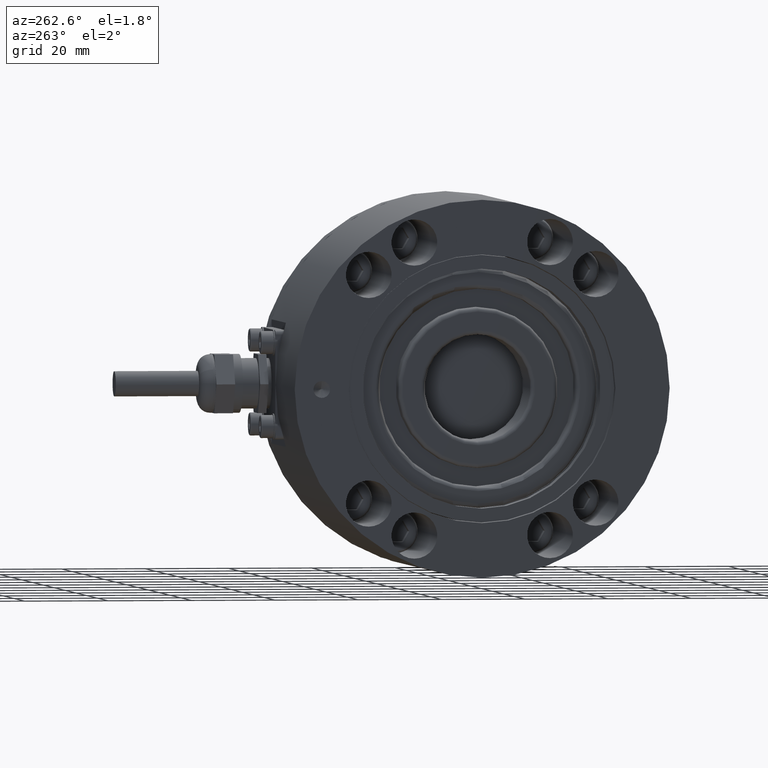
[diagram: clean part render]
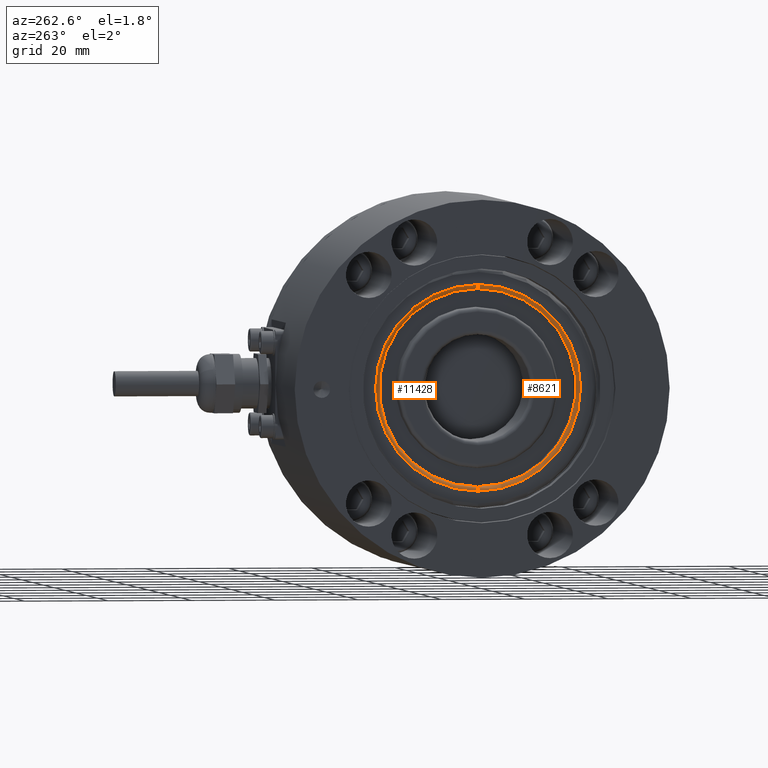
[diagram: same view with one multi-face feature highlighted, each face labeled with its STEP entity id]
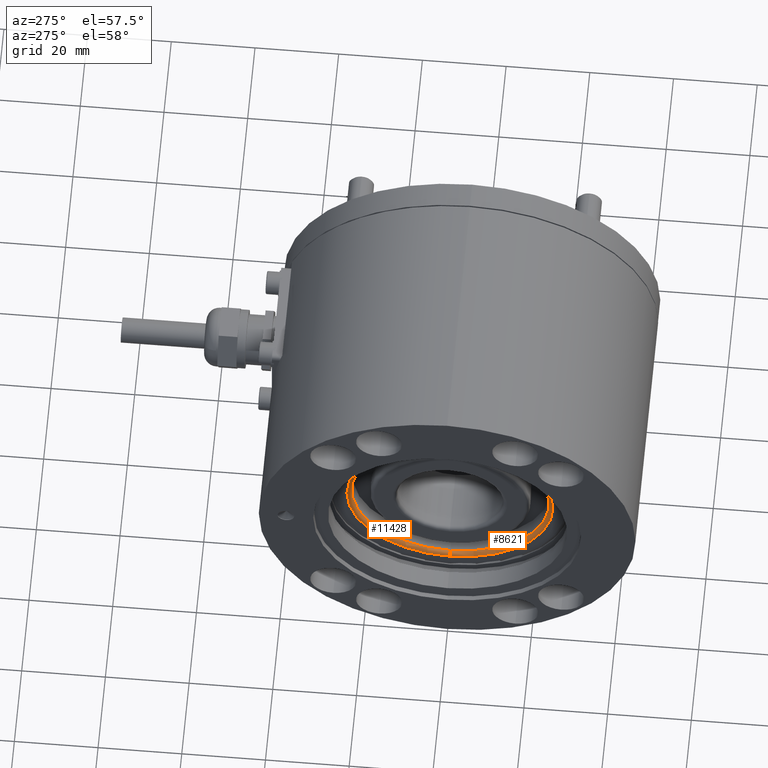
[diagram: same view with one multi-face feature highlighted, each face labeled with its STEP entity id]
A machine part, auxiliary view. The highlighted faces form ONE feature: a constant-radius fillet chain: 2 tangent blend faces with common blend radius 1 mm. The faces share edges in the B-rep.
A second angle (auxiliary view) of the same feature is appended — it is thin or edge-on in the first view.
Their STEP definitions:
[1] entity #8621 (Torus):
#73 = AXIS2_PLACEMENT_3D ( 'NONE', #5083, #1194, #10189 ) ;
#279 = DIRECTION ( 'NONE',  ( 0.000000000000000000, 0.000000000000000000, -1.000000000000000000 ) ) ;
#491 = EDGE_CURVE ( 'NONE', #675, #8594, #4016, .T. ) ;
#675 = VERTEX_POINT ( 'NONE', #5053 ) ;
#955 = DIRECTION ( 'NONE',  ( 1.000000000000000000, 0.000000000000000000, 0.000000000000000000 ) ) ;
#1047 = VERTEX_POINT ( 'NONE', #10805 ) ;
#1194 = DIRECTION ( 'NONE',  ( 0.000000000000000000, 1.000000000000000000, -1.224646799147353207E-16 ) ) ;
#2004 = FACE_OUTER_BOUND ( 'NONE', #5939, .T. ) ;
#2189 = CARTESIAN_POINT ( 'NONE',  ( 1.000000000000000000, 0.000000000000000000, -24.60000000000000497 ) ) ;
#2802 = VERTEX_POINT ( 'NONE', #5562 ) ;
#3577 = TOROIDAL_SURFACE ( 'NONE', #5317, 24.60000000000000497, 1.000000000000000000 ) ;
#4016 = CIRCLE ( 'NONE', #12811, 24.60000000000000497 ) ;
#4924 = AXIS2_PLACEMENT_3D ( 'NONE', #12162, #9011, #7010 ) ;
#5053 = CARTESIAN_POINT ( 'NONE',  ( 0.000000000000000000, 3.012631125902489220E-15, 24.60000000000000497 ) ) ;
#5083 = CARTESIAN_POINT ( 'NONE',  ( 1.000000000000000000, 3.012631125902489220E-15, 24.60000000000000497 ) ) ;
#5317 = AXIS2_PLACEMENT_3D ( 'NONE', #10076, #12913, #10033 ) ;
#5537 = ORIENTED_EDGE ( 'NONE', *, *, #7249, .F. ) ;
#5562 = CARTESIAN_POINT ( 'NONE',  ( 1.000000000000000000, 2.890166445987753677E-15, 23.60000000000000142 ) ) ;
#5939 = EDGE_LOOP ( 'NONE', ( #9468, #5537, #11609, #11862 ) ) ;
#6222 = DIRECTION ( 'NONE',  ( 0.000000000000000000, -1.000000000000000000, 0.000000000000000000 ) ) ;
#6255 = EDGE_CURVE ( 'NONE', #2802, #675, #7376, .T. ) ;
#6547 = CIRCLE ( 'NONE', #7071, 1.000000000000000888 ) ;
#7010 = DIRECTION ( 'NONE',  ( 0.000000000000000000, 0.000000000000000000, -1.000000000000000000 ) ) ;
#7067 = CARTESIAN_POINT ( 'NONE',  ( 0.000000000000000000, 0.000000000000000000, -24.60000000000000497 ) ) ;
#7071 = AXIS2_PLACEMENT_3D ( 'NONE', #2189, #6222, #279 ) ;
#7249 = EDGE_CURVE ( 'NONE', #1047, #2802, #12509, .T. ) ;
#7376 = CIRCLE ( 'NONE', #73, 1.000000000000000888 ) ;
#8594 = VERTEX_POINT ( 'NONE', #7067 ) ;
#8621 = ADVANCED_FACE ( 'NONE', ( #2004 ), #3577, .T. ) ;
#8983 = DIRECTION ( 'NONE',  ( 0.000000000000000000, 0.000000000000000000, -1.000000000000000000 ) ) ;
#9011 = DIRECTION ( 'NONE',  ( -1.000000000000000000, -0.000000000000000000, -0.000000000000000000 ) ) ;
#9455 = EDGE_CURVE ( 'NONE', #1047, #8594, #6547, .T. ) ;
#9468 = ORIENTED_EDGE ( 'NONE', *, *, #6255, .F. ) ;
#9865 = CARTESIAN_POINT ( 'NONE',  ( 0.000000000000000000, 0.000000000000000000, 0.000000000000000000 ) ) ;
#10033 = DIRECTION ( 'NONE',  ( 0.000000000000000000, 0.000000000000000000, -1.000000000000000000 ) ) ;
#10076 = CARTESIAN_POINT ( 'NONE',  ( 1.000000000000000000, 0.000000000000000000, 0.000000000000000000 ) ) ;
#10189 = DIRECTION ( 'NONE',  ( 0.000000000000000000, 1.224646799147353454E-16, 1.000000000000000000 ) ) ;
#10805 = CARTESIAN_POINT ( 'NONE',  ( 1.000000000000000000, 0.000000000000000000, -23.60000000000000142 ) ) ;
#11609 = ORIENTED_EDGE ( 'NONE', *, *, #9455, .T. ) ;
#11862 = ORIENTED_EDGE ( 'NONE', *, *, #491, .F. ) ;
#12162 = CARTESIAN_POINT ( 'NONE',  ( 1.000000000000000000, 0.000000000000000000, 0.000000000000000000 ) ) ;
#12509 = CIRCLE ( 'NONE', #4924, 23.60000000000000142 ) ;
#12811 = AXIS2_PLACEMENT_3D ( 'NONE', #9865, #955, #8983 ) ;
#12913 = DIRECTION ( 'NONE',  ( 1.000000000000000000, 0.000000000000000000, 0.000000000000000000 ) ) ;
[2] entity #11428 (Torus):
#73 = AXIS2_PLACEMENT_3D ( 'NONE', #5083, #1194, #10189 ) ;
#79 = CARTESIAN_POINT ( 'NONE',  ( 0.000000000000000000, 0.000000000000000000, 0.000000000000000000 ) ) ;
#279 = DIRECTION ( 'NONE',  ( 0.000000000000000000, 0.000000000000000000, -1.000000000000000000 ) ) ;
#659 = EDGE_CURVE ( 'NONE', #8594, #675, #11062, .T. ) ;
#675 = VERTEX_POINT ( 'NONE', #5053 ) ;
#1047 = VERTEX_POINT ( 'NONE', #10805 ) ;
#1194 = DIRECTION ( 'NONE',  ( 0.000000000000000000, 1.000000000000000000, -1.224646799147353207E-16 ) ) ;
#1951 = FACE_OUTER_BOUND ( 'NONE', #4868, .T. ) ;
#2189 = CARTESIAN_POINT ( 'NONE',  ( 1.000000000000000000, 0.000000000000000000, -24.60000000000000497 ) ) ;
#2802 = VERTEX_POINT ( 'NONE', #5562 ) ;
#3639 = DIRECTION ( 'NONE',  ( 1.000000000000000000, 0.000000000000000000, 0.000000000000000000 ) ) ;
#4868 = EDGE_LOOP ( 'NONE', ( #8176, #11943, #5310, #9685 ) ) ;
#5053 = CARTESIAN_POINT ( 'NONE',  ( 0.000000000000000000, 3.012631125902489220E-15, 24.60000000000000497 ) ) ;
#5082 = TOROIDAL_SURFACE ( 'NONE', #12270, 24.60000000000000497, 1.000000000000000000 ) ;
#5083 = CARTESIAN_POINT ( 'NONE',  ( 1.000000000000000000, 3.012631125902489220E-15, 24.60000000000000497 ) ) ;
#5310 = ORIENTED_EDGE ( 'NONE', *, *, #659, .F. ) ;
#5439 = DIRECTION ( 'NONE',  ( 0.000000000000000000, 0.000000000000000000, -1.000000000000000000 ) ) ;
#5562 = CARTESIAN_POINT ( 'NONE',  ( 1.000000000000000000, 2.890166445987753677E-15, 23.60000000000000142 ) ) ;
#6222 = DIRECTION ( 'NONE',  ( 0.000000000000000000, -1.000000000000000000, 0.000000000000000000 ) ) ;
#6255 = EDGE_CURVE ( 'NONE', #2802, #675, #7376, .T. ) ;
#6318 = EDGE_CURVE ( 'NONE', #2802, #1047, #12531, .T. ) ;
#6466 = AXIS2_PLACEMENT_3D ( 'NONE', #79, #10163, #12046 ) ;
#6547 = CIRCLE ( 'NONE', #7071, 1.000000000000000888 ) ;
#7021 = AXIS2_PLACEMENT_3D ( 'NONE', #9265, #12418, #5439 ) ;
#7067 = CARTESIAN_POINT ( 'NONE',  ( 0.000000000000000000, 0.000000000000000000, -24.60000000000000497 ) ) ;
#7071 = AXIS2_PLACEMENT_3D ( 'NONE', #2189, #6222, #279 ) ;
#7376 = CIRCLE ( 'NONE', #73, 1.000000000000000888 ) ;
#7678 = CARTESIAN_POINT ( 'NONE',  ( 1.000000000000000000, 0.000000000000000000, 0.000000000000000000 ) ) ;
#7768 = DIRECTION ( 'NONE',  ( 0.000000000000000000, 0.000000000000000000, -1.000000000000000000 ) ) ;
#8176 = ORIENTED_EDGE ( 'NONE', *, *, #6318, .F. ) ;
#8594 = VERTEX_POINT ( 'NONE', #7067 ) ;
#9265 = CARTESIAN_POINT ( 'NONE',  ( 1.000000000000000000, 0.000000000000000000, 0.000000000000000000 ) ) ;
#9455 = EDGE_CURVE ( 'NONE', #1047, #8594, #6547, .T. ) ;
#9685 = ORIENTED_EDGE ( 'NONE', *, *, #9455, .F. ) ;
#10163 = DIRECTION ( 'NONE',  ( 1.000000000000000000, 0.000000000000000000, 0.000000000000000000 ) ) ;
#10189 = DIRECTION ( 'NONE',  ( 0.000000000000000000, 1.224646799147353454E-16, 1.000000000000000000 ) ) ;
#10805 = CARTESIAN_POINT ( 'NONE',  ( 1.000000000000000000, 0.000000000000000000, -23.60000000000000142 ) ) ;
#11062 = CIRCLE ( 'NONE', #6466, 24.60000000000000497 ) ;
#11428 = ADVANCED_FACE ( 'NONE', ( #1951 ), #5082, .T. ) ;
#11943 = ORIENTED_EDGE ( 'NONE', *, *, #6255, .T. ) ;
#12046 = DIRECTION ( 'NONE',  ( 0.000000000000000000, 0.000000000000000000, -1.000000000000000000 ) ) ;
#12270 = AXIS2_PLACEMENT_3D ( 'NONE', #7678, #3639, #7768 ) ;
#12418 = DIRECTION ( 'NONE',  ( -1.000000000000000000, -0.000000000000000000, -0.000000000000000000 ) ) ;
#12531 = CIRCLE ( 'NONE', #7021, 23.60000000000000142 ) ;